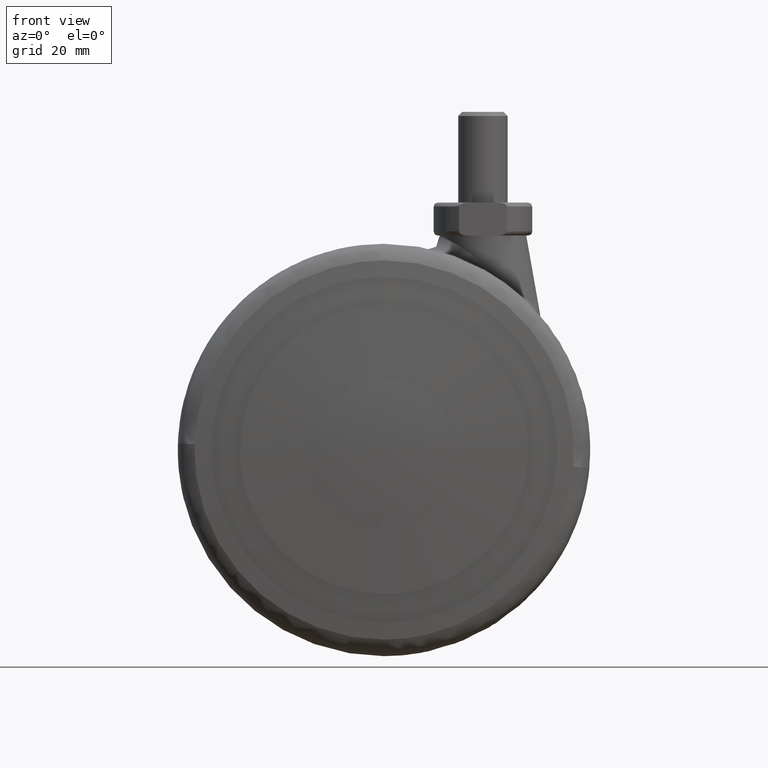
[diagram: clean part render]
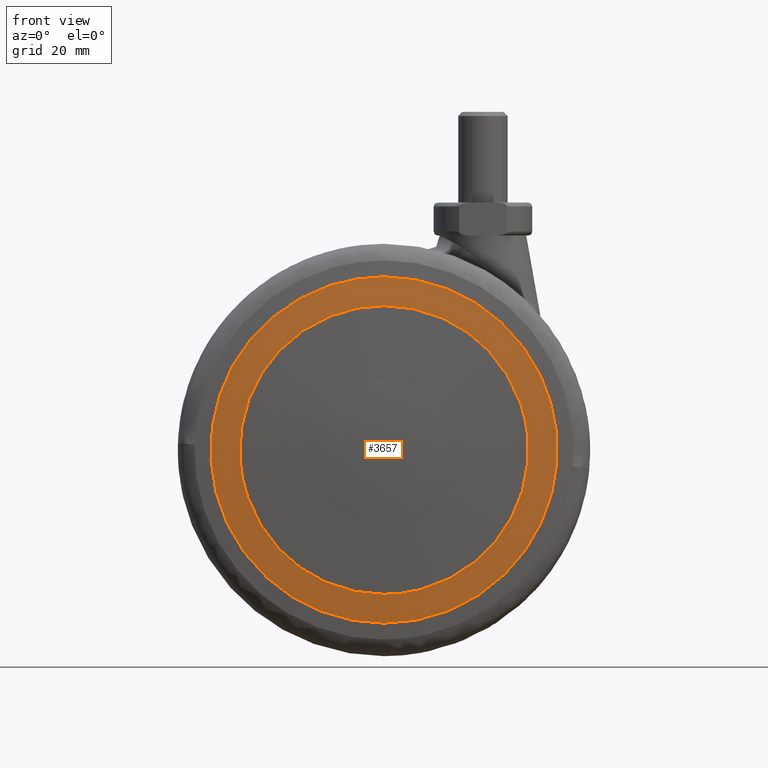
[diagram: same view with one face highlighted and labeled with its STEP entity id]
A machine part, front view. The second image highlights one B-rep face of the part: STEP entity #3657.
In plain terms, the highlighted face is a freeform B-spline surface patch.
Its self-contained STEP definition (entity closure, byte-faithful):
#2344=CARTESIAN_POINT('',(-34.934720154284733,-28.426129330010252,-2.136662757784329));
#2345=VERTEX_POINT('',#2344);
#2351=CARTESIAN_POINT('',(0.0,-28.426129330010252,-35.0));
#2352=VERTEX_POINT('',#2351);
#2353=CARTESIAN_POINT('',(0.0,-28.426129330010252,-35.0));
#2354=CARTESIAN_POINT('',(-32.924746452729771,-28.426129330010259,-34.999999999999993));
#2355=CARTESIAN_POINT('',(-34.934720154284733,-28.426129330010252,-2.136662757784329));
#2363=(BOUNDED_CURVE()B_SPLINE_CURVE(2,(#2353,#2354,#2355),.UNSPECIFIED.,.F.,.U.)B_SPLINE_CURVE_WITH_KNOTS((3,3),(0.500000000000000,0.739333140672350),.UNSPECIFIED.)CURVE()GEOMETRIC_REPRESENTATION_ITEM()RATIONAL_B_SPLINE_CURVE((1.0,0.719603784238970,0.976072424083774))REPRESENTATION_ITEM(''));
#2364=EDGE_CURVE('',#2352,#2345,#2363,.T.);
#2366=CARTESIAN_POINT('',(34.755336269401873,-28.426129330010252,4.131174264082503));
#2367=VERTEX_POINT('',#2366);
#2368=CARTESIAN_POINT('',(34.755336269401859,-28.426129330010252,4.131174264082503));
#2369=CARTESIAN_POINT('',(35.000000000000007,-28.426129330010248,2.072832086773691));
#2370=CARTESIAN_POINT('',(35.0,-28.426129330010252,0.0));
#2371=CARTESIAN_POINT('',(34.999999999999993,-28.426129330010248,-34.999999999999993));
#2372=CARTESIAN_POINT('',(0.0,-28.426129330010252,-35.0));
#2380=(BOUNDED_CURVE()B_SPLINE_CURVE(2,(#2368,#2369,#2370,#2371,#2372),.UNSPECIFIED.,.F.,.U.)B_SPLINE_CURVE_WITH_KNOTS((3,2,3),(0.229562589970944,0.250000000000000,0.500000000000000),.UNSPECIFIED.)CURVE()GEOMETRIC_REPRESENTATION_ITEM()RATIONAL_B_SPLINE_CURVE((0.956026982445166,0.976056084769518,1.0,0.707106781186548,1.0))REPRESENTATION_ITEM(''));
#2381=EDGE_CURVE('',#2367,#2352,#2380,.T.);
#2425=CARTESIAN_POINT('',(0.0,-28.426129330010252,35.0));
#2426=VERTEX_POINT('',#2425);
#2427=CARTESIAN_POINT('',(0.0,-28.426129330010252,35.0));
#2428=CARTESIAN_POINT('',(31.086129979642852,-28.426129330010255,35.0));
#2429=CARTESIAN_POINT('',(34.755336269401859,-28.426129330010252,4.131174264082503));
#2437=(BOUNDED_CURVE()B_SPLINE_CURVE(2,(#2427,#2428,#2429),.UNSPECIFIED.,.F.,.U.)B_SPLINE_CURVE_WITH_KNOTS((3,3),(0.0,0.229562589970944),.UNSPECIFIED.)CURVE()GEOMETRIC_REPRESENTATION_ITEM()RATIONAL_B_SPLINE_CURVE((1.0,0.731050696417030,0.956026982445166))REPRESENTATION_ITEM(''));
#2438=EDGE_CURVE('',#2426,#2367,#2437,.T.);
#2440=CARTESIAN_POINT('',(-34.934720154284733,-28.426129330010252,-2.136662757784329));
#2441=CARTESIAN_POINT('',(-35.0,-28.426129330010244,-1.069328601837405));
#2442=CARTESIAN_POINT('',(-35.0,-28.426129330010252,0.0));
#2443=CARTESIAN_POINT('',(-34.999999999999993,-28.426129330010248,34.999999999999993));
#2444=CARTESIAN_POINT('',(0.0,-28.426129330010252,35.0));
#2452=(BOUNDED_CURVE()B_SPLINE_CURVE(2,(#2440,#2441,#2442,#2443,#2444),.UNSPECIFIED.,.F.,.U.)B_SPLINE_CURVE_WITH_KNOTS((3,2,3),(0.739333140672350,0.750000000000000,1.0),.UNSPECIFIED.)CURVE()GEOMETRIC_REPRESENTATION_ITEM()RATIONAL_B_SPLINE_CURVE((0.976072424083774,0.987502996947577,1.0,0.707106781186548,1.0))REPRESENTATION_ITEM(''));
#2453=EDGE_CURVE('',#2345,#2426,#2452,.T.);
#2496=CARTESIAN_POINT('',(41.706404811223052,-27.795357728210810,4.957398281437719));
#2497=VERTEX_POINT('',#2496);
#2498=CARTESIAN_POINT('',(0.0,-27.795357728205751,-42.0));
#2499=VERTEX_POINT('',#2498);
#2500=CARTESIAN_POINT('',(41.706404811223052,-27.795357728210806,4.957398281437719));
#2501=CARTESIAN_POINT('',(42.0,-27.795357728205744,2.487393029123562));
#2502=CARTESIAN_POINT('',(42.0,-27.795357728205751,0.0));
#2503=CARTESIAN_POINT('',(41.999999999999993,-27.795357728205744,-41.999999999999993));
#2504=CARTESIAN_POINT('',(0.0,-27.795357728205751,-42.0));
#2512=(BOUNDED_CURVE()B_SPLINE_CURVE(2,(#2500,#2501,#2502,#2503,#2504),.UNSPECIFIED.,.F.,.U.)B_SPLINE_CURVE_WITH_KNOTS((3,2,3),(0.229562633878554,0.250000000000000,0.500000000000000),.UNSPECIFIED.)CURVE()GEOMETRIC_REPRESENTATION_ITEM()RATIONAL_B_SPLINE_CURVE((0.956027068505992,0.976056136210482,1.0,0.707106781186547,1.0))REPRESENTATION_ITEM(''));
#2513=EDGE_CURVE('',#2497,#2499,#2512,.T.);
#2515=CARTESIAN_POINT('',(-41.921662047373488,-27.795357728206302,-2.564030262250118));
#2516=VERTEX_POINT('',#2515);
#2517=CARTESIAN_POINT('',(0.0,-27.795357728205751,-42.0));
#2518=CARTESIAN_POINT('',(-39.509662739844345,-27.795357728205762,-41.999999999999986));
#2519=CARTESIAN_POINT('',(-41.921662047373488,-27.795357728206302,-2.564030262250119));
#2527=(BOUNDED_CURVE()B_SPLINE_CURVE(2,(#2517,#2518,#2519),.UNSPECIFIED.,.F.,.U.)B_SPLINE_CURVE_WITH_KNOTS((3,3),(0.500000000000000,0.739332996808463),.UNSPECIFIED.)CURVE()GEOMETRIC_REPRESENTATION_ITEM()RATIONAL_B_SPLINE_CURVE((1.0,0.719603952785998,0.976072115755791))REPRESENTATION_ITEM(''));
#2528=EDGE_CURVE('',#2499,#2516,#2527,.T.);
#2595=CARTESIAN_POINT('',(0.0,-27.795357728205751,42.0));
#2596=VERTEX_POINT('',#2595);
#2597=CARTESIAN_POINT('',(0.0,-27.795357728205751,42.0));
#2598=CARTESIAN_POINT('',(37.303365735330978,-27.795357728205751,42.000000000000007));
#2599=CARTESIAN_POINT('',(41.706404811223052,-27.795357728210806,4.957398281437719));
#2607=(BOUNDED_CURVE()B_SPLINE_CURVE(2,(#2597,#2598,#2599),.UNSPECIFIED.,.F.,.U.)B_SPLINE_CURVE_WITH_KNOTS((3,3),(0.0,0.229562633878554),.UNSPECIFIED.)CURVE()GEOMETRIC_REPRESENTATION_ITEM()RATIONAL_B_SPLINE_CURVE((1.0,0.731050644976065,0.956027068505992))REPRESENTATION_ITEM(''));
#2608=EDGE_CURVE('',#2596,#2497,#2607,.T.);
#2642=CARTESIAN_POINT('',(-41.921662047373488,-27.795357728206302,-2.564030262250119));
#2643=CARTESIAN_POINT('',(-41.999999999999993,-27.795357728205747,-1.283211847659975));
#2644=CARTESIAN_POINT('',(-42.0,-27.795357728205751,0.0));
#2645=CARTESIAN_POINT('',(-41.999999999999993,-27.795357728205744,41.999999999999993));
#2646=CARTESIAN_POINT('',(0.0,-27.795357728205751,42.0));
#2654=(BOUNDED_CURVE()B_SPLINE_CURVE(2,(#2642,#2643,#2644,#2645,#2646),.UNSPECIFIED.,.F.,.U.)B_SPLINE_CURVE_WITH_KNOTS((3,2,3),(0.739332996808463,0.750000000000000,1.0),.UNSPECIFIED.)CURVE()GEOMETRIC_REPRESENTATION_ITEM()RATIONAL_B_SPLINE_CURVE((0.976072115755791,0.987502828400549,1.0,0.707106781186547,1.0))REPRESENTATION_ITEM(''));
#2655=EDGE_CURVE('',#2516,#2596,#2654,.T.);
#3621=CARTESIAN_POINT('',(-46.037802844468189,-24.886849905385969,-46.038817852488400));
#3622=CARTESIAN_POINT('',(-23.085754491837452,-27.364279774409297,-46.172526939550870));
#3623=CARTESIAN_POINT('',(23.085883446941764,-27.364279774409297,-46.172526939550870));
#3624=CARTESIAN_POINT('',(46.038058518375998,-24.886822308025312,-46.038816363034357));
#3625=CARTESIAN_POINT('',(-46.171514896575104,-27.364389334043345,-23.086266426290731));
#3626=CARTESIAN_POINT('',(-23.152999984729110,-29.856251999999809,-23.153510445246852));
#3627=CARTESIAN_POINT('',(23.153129315461150,-29.856251999999809,-23.153510445246852));
#3628=CARTESIAN_POINT('',(46.171771308722960,-27.364361576142528,-23.086265677231463));
#3629=CARTESIAN_POINT('',(-46.171514896575104,-27.364389334043345,23.086270468871810));
#3630=CARTESIAN_POINT('',(-23.152999984729110,-29.856251999999809,23.153514499602871));
#3631=CARTESIAN_POINT('',(23.153129315461150,-29.856251999999809,23.153514499602871));
#3632=CARTESIAN_POINT('',(46.171771308722960,-27.364361576142528,23.086269719812410));
#3633=CARTESIAN_POINT('',(-46.037802797775790,-24.886849040226608,46.038825867542627));
#3634=CARTESIAN_POINT('',(-23.085754468355454,-27.364278904217326,46.172534977746977));
#3635=CARTESIAN_POINT('',(23.085883423459634,-27.364278904217326,46.172534977746977));
#3636=CARTESIAN_POINT('',(46.038058471683385,-24.886821442866033,46.038824378088364));
#3644=(BOUNDED_SURFACE()B_SPLINE_SURFACE(2,2,((#3621,#3625,#3629,#3633),(#3622,#3626,#3630,#3634),(#3623,#3627,#3631,#3635),(#3624,#3628,#3632,#3636)),.UNSPECIFIED.,.F.,.F.,.U.)B_SPLINE_SURFACE_WITH_KNOTS((3,1,3),(3,1,3),(146.491719017791810,191.612659318445710,236.733851660919210),(146.490724224090600,191.612659318445710,236.734602313995400),.UNSPECIFIED.)GEOMETRIC_REPRESENTATION_ITEM()RATIONAL_B_SPLINE_SURFACE(((1.005825584811162,1.002912728187159,1.002912728187159,1.005825585831289),(1.002912856624003,1.0,1.0,1.002912857644130),(1.002912856624003,1.0,1.0,1.002912857644130),(1.005825617351768,1.002912760727765,1.002912760727765,1.005825618371894)))REPRESENTATION_ITEM('')SURFACE());
#3645=ORIENTED_EDGE('',*,*,#2655,.F.);
#3646=ORIENTED_EDGE('',*,*,#2528,.F.);
#3647=ORIENTED_EDGE('',*,*,#2513,.F.);
#3648=ORIENTED_EDGE('',*,*,#2608,.F.);
#3649=EDGE_LOOP('',(#3645,#3646,#3647,#3648));
#3650=FACE_OUTER_BOUND('',#3649,.T.);
#3651=ORIENTED_EDGE('',*,*,#2364,.T.);
#3652=ORIENTED_EDGE('',*,*,#2453,.T.);
#3653=ORIENTED_EDGE('',*,*,#2438,.T.);
#3654=ORIENTED_EDGE('',*,*,#2381,.T.);
#3655=EDGE_LOOP('',(#3651,#3652,#3653,#3654));
#3656=FACE_BOUND('',#3655,.T.);
#3657=ADVANCED_FACE('',(#3650,#3656),#3644,.T.);